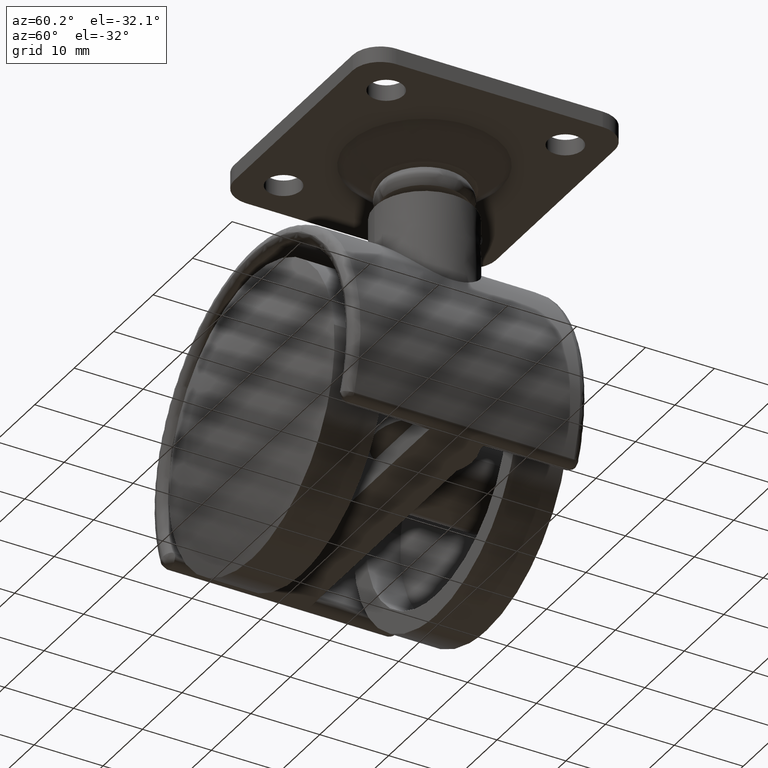
[diagram: clean part render]
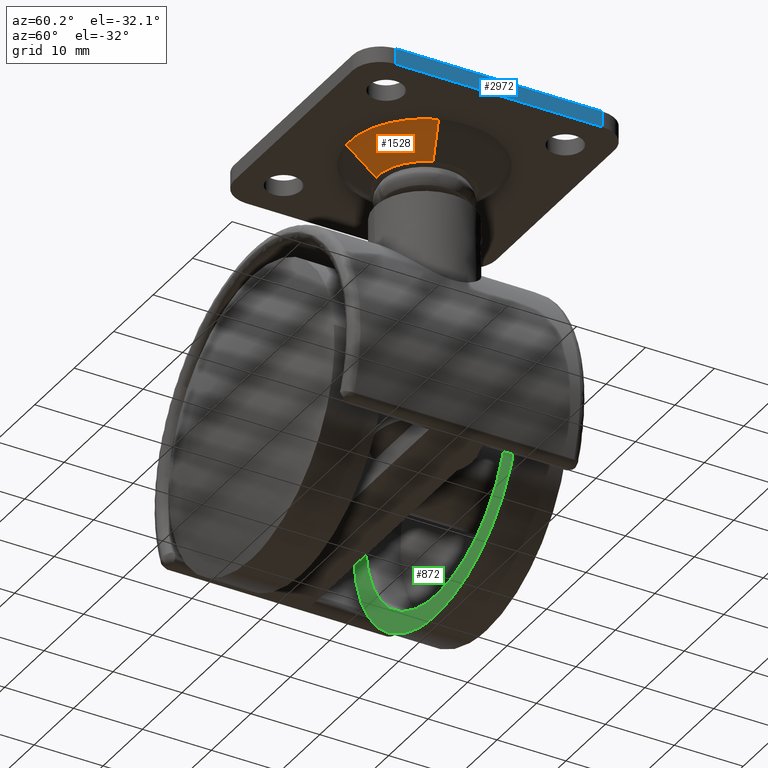
[diagram: same view with three faces highlighted in distinct colors, each labeled with its STEP entity id]
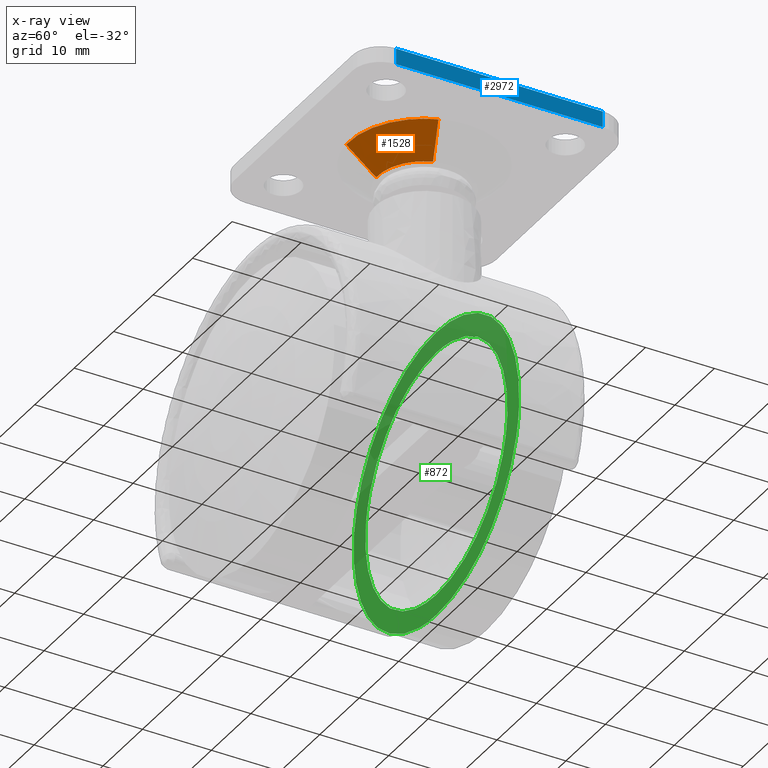
[diagram: x-ray of the same camera — body ghosted, the three highlighted faces saturated]
A machine part, auxiliary view with three faces highlighted in distinct colors.
The next image is the same camera in x-ray (body ghosted, the three faces saturated) — at least one of them is partly hidden behind the body in this view.
Their STEP definitions:

[orange] entity #1528 — the highlighted face is a freeform B-spline surface patch.
#1339=CARTESIAN_POINT('',(20.358819132950750,-2.388389833725817,31.498982323349232));
#1340=VERTEX_POINT('',#1339);
#1403=CARTESIAN_POINT('',(13.585321499116210,-6.779900854626694,31.498982323365318));
#1404=VERTEX_POINT('',#1403);
#1418=CARTESIAN_POINT('',(13.328464065108360,-10.979482782641190,35.200000000000983));
#1419=VERTEX_POINT('',#1418);
#1420=CARTESIAN_POINT('',(13.585321499116210,-6.779900854626694,31.498982323365318));
#1421=CARTESIAN_POINT('',(13.328464065108360,-10.979482782641190,35.200000000000983));
#1422=QUASI_UNIFORM_CURVE('',1,(#1420,#1421),.UNSPECIFIED.,.F.,.U.);
#1423=EDGE_CURVE('',#1404,#1419,#1422,.T.);
#1457=CARTESIAN_POINT('',(24.297577366536071,-3.867797718334381,35.200000000002362));
#1458=VERTEX_POINT('',#1457);
#1472=CARTESIAN_POINT('',(20.358819132950750,-2.388389833725817,31.498982323349232));
#1473=CARTESIAN_POINT('',(24.297577366536071,-3.867797718334381,35.200000000002362));
#1474=QUASI_UNIFORM_CURVE('',1,(#1472,#1473),.UNSPECIFIED.,.F.,.U.);
#1475=EDGE_CURVE('',#1340,#1458,#1474,.T.);
#1480=CARTESIAN_POINT('',(13.591742936263850,-6.674911289473668,31.406456866495390));
#1481=CARTESIAN_POINT('',(18.523141531887774,-6.976528548588443,31.406456866495390));
#1482=CARTESIAN_POINT('',(20.260350161275579,-2.351404630475757,31.406456866495379));
#1483=CARTESIAN_POINT('',(13.321882093338001,-11.087097069969809,35.294838578337632));
#1484=CARTESIAN_POINT('',(21.512986446532544,-11.588086474137222,35.294838578337632));
#1485=CARTESIAN_POINT('',(24.398508046675133,-3.905707545503113,35.294838578337625));
#1493=(BOUNDED_SURFACE()B_SPLINE_SURFACE(2,1,((#1480,#1483),(#1481,#1484),(#1482,#1485)),.UNSPECIFIED.,.F.,.F.,.U.)B_SPLINE_SURFACE_WITH_KNOTS((3,3),(2,2),(0.0,14.622869388429271),(0.0,5.887250680338510),.UNSPECIFIED.)GEOMETRIC_REPRESENTATION_ITEM()RATIONAL_B_SPLINE_SURFACE(((1.0,1.0),(0.765685424949238,0.765685424949238),(0.906274169979695,0.906274169979695)))REPRESENTATION_ITEM('')SURFACE());
#1494=CARTESIAN_POINT('',(13.585321499116212,-6.779900854626696,31.498982323365322));
#1495=CARTESIAN_POINT('',(13.792466205116348,-6.792570367576681,31.498982323334701));
#1496=CARTESIAN_POINT('',(13.999998000000099,-6.792570367576680,31.498982323334701));
#1497=CARTESIAN_POINT('',(18.704597415759594,-6.792570367576679,31.498982323334701));
#1498=CARTESIAN_POINT('',(20.358819132950753,-2.388389833725817,31.498982323349228));
#1506=(BOUNDED_CURVE()B_SPLINE_CURVE(2,(#1494,#1495,#1496,#1497,#1498),.UNSPECIFIED.,.F.,.U.)B_SPLINE_CURVE_WITH_KNOTS((3,2,3),(0.239332962229067,0.250000000000000,0.440284170890936),.UNSPECIFIED.)CURVE()GEOMETRIC_REPRESENTATION_ITEM()RATIONAL_B_SPLINE_CURVE((0.976072041645552,0.987502787888267,1.0,0.777068226794019,0.893499554626009))REPRESENTATION_ITEM(''));
#1507=EDGE_CURVE('',#1404,#1340,#1506,.T.);
#1508=ORIENTED_EDGE('',*,*,#1507,.T.);
#1509=ORIENTED_EDGE('',*,*,#1475,.T.);
#1510=CARTESIAN_POINT('',(13.328464065108356,-10.979482782641188,35.200000000000983));
#1511=CARTESIAN_POINT('',(13.663917603707356,-11.000000000000002,35.199999999999996));
#1512=CARTESIAN_POINT('',(13.999998000000099,-11.0,35.200000000000003));
#1513=CARTESIAN_POINT('',(21.618703552597434,-11.0,35.200000000000003));
#1514=CARTESIAN_POINT('',(24.297577366536064,-3.867797718334381,35.200000000002362));
#1522=(BOUNDED_CURVE()B_SPLINE_CURVE(2,(#1510,#1511,#1512,#1513,#1514),.UNSPECIFIED.,.F.,.U.)B_SPLINE_CURVE_WITH_KNOTS((3,2,3),(0.239332962241709,0.250000000000000,0.440284170898108),.UNSPECIFIED.)CURVE()GEOMETRIC_REPRESENTATION_ITEM()RATIONAL_B_SPLINE_CURVE((0.976072041672646,0.987502787903078,1.0,0.777068226785616,0.893499554634785))REPRESENTATION_ITEM(''));
#1523=EDGE_CURVE('',#1419,#1458,#1522,.T.);
#1524=ORIENTED_EDGE('',*,*,#1523,.F.);
#1525=ORIENTED_EDGE('',*,*,#1423,.F.);
#1526=EDGE_LOOP('',(#1508,#1509,#1524,#1525));
#1527=FACE_OUTER_BOUND('',#1526,.T.);
#1528=ADVANCED_FACE('',(#1527),#1493,.T.);

[blue] entity #2972 — the highlighted face is a freeform B-spline surface patch.
#2671=CARTESIAN_POINT('',(32.999998000000012,15.0,35.200000000000003));
#2672=VERTEX_POINT('',#2671);
#2686=CARTESIAN_POINT('',(32.999998000000012,-15.0,35.200000000000003));
#2687=VERTEX_POINT('',#2686);
#2688=CARTESIAN_POINT('',(32.999998000000012,15.0,35.200000000000003));
#2689=CARTESIAN_POINT('',(32.999998000000012,-15.0,35.200000000000003));
#2690=QUASI_UNIFORM_CURVE('',1,(#2688,#2689),.UNSPECIFIED.,.F.,.U.);
#2691=EDGE_CURVE('',#2672,#2687,#2690,.T.);
#2797=CARTESIAN_POINT('',(32.999998000000012,-15.0,37.500000000000000));
#2798=VERTEX_POINT('',#2797);
#2812=CARTESIAN_POINT('',(32.999998000000012,15.0,37.500000000000000));
#2813=VERTEX_POINT('',#2812);
#2814=CARTESIAN_POINT('',(32.999998000000012,15.0,37.500000000000000));
#2815=CARTESIAN_POINT('',(32.999998000000012,-15.0,37.500000000000000));
#2816=QUASI_UNIFORM_CURVE('',1,(#2814,#2815),.UNSPECIFIED.,.F.,.U.);
#2817=EDGE_CURVE('',#2813,#2798,#2816,.T.);
#2947=CARTESIAN_POINT('',(32.999998000000012,-15.0,37.500000000000000));
#2948=CARTESIAN_POINT('',(32.999998000000012,-15.0,35.200000000000003));
#2949=QUASI_UNIFORM_CURVE('',1,(#2947,#2948),.UNSPECIFIED.,.F.,.U.);
#2950=EDGE_CURVE('',#2798,#2687,#2949,.T.);
#2957=CARTESIAN_POINT('',(32.999998000000012,-16.498499941854181,37.614884954456080));
#2958=CARTESIAN_POINT('',(32.999998000000012,-16.498499941854181,35.085115806397219));
#2959=CARTESIAN_POINT('',(32.999998000000012,16.498500746516889,37.614884954456080));
#2960=CARTESIAN_POINT('',(32.999998000000012,16.498500746516889,35.085115806397219));
#2961=B_SPLINE_SURFACE_WITH_KNOTS('',1,1,((#2957,#2959),(#2958,#2960)),.UNSPECIFIED.,.F.,.F.,.U.,(2,2),(2,2),(0.0,2.529769148058861),(0.0,32.997000688371060),.UNSPECIFIED.);
#2962=ORIENTED_EDGE('',*,*,#2691,.F.);
#2963=CARTESIAN_POINT('',(32.999998000000012,15.0,37.500000000000000));
#2964=CARTESIAN_POINT('',(32.999998000000012,15.0,35.200000000000003));
#2965=QUASI_UNIFORM_CURVE('',1,(#2963,#2964),.UNSPECIFIED.,.F.,.U.);
#2966=EDGE_CURVE('',#2813,#2672,#2965,.T.);
#2967=ORIENTED_EDGE('',*,*,#2966,.F.);
#2968=ORIENTED_EDGE('',*,*,#2817,.T.);
#2969=ORIENTED_EDGE('',*,*,#2950,.T.);
#2970=EDGE_LOOP('',(#2962,#2967,#2968,#2969));
#2971=FACE_OUTER_BOUND('',#2970,.T.);
#2972=ADVANCED_FACE('',(#2971),#2961,.T.);

[green] entity #872 — the highlighted face is a freeform B-spline surface patch.
#457=CARTESIAN_POINT('',(17.874171845220008,-9.750000000000000,2.124613105375699));
#458=VERTEX_POINT('',#457);
#464=CARTESIAN_POINT('',(0.0,-9.750000000000000,-18.0));
#465=VERTEX_POINT('',#464);
#466=CARTESIAN_POINT('',(17.874171845220012,-9.749999999999998,2.124613105375699));
#467=CARTESIAN_POINT('',(18.000000000000004,-9.750000000000000,1.066032578027540));
#468=CARTESIAN_POINT('',(18.0,-9.750000000000000,0.0));
#469=CARTESIAN_POINT('',(18.000000000000007,-9.750000000000000,-18.000000000000007));
#470=CARTESIAN_POINT('',(0.0,-9.750000000000000,-18.0));
#478=(BOUNDED_CURVE()B_SPLINE_CURVE(2,(#466,#467,#468,#469,#470),.UNSPECIFIED.,.F.,.U.)B_SPLINE_CURVE_WITH_KNOTS((3,2,3),(0.229562503001067,0.250000000000000,0.500000000000000),.UNSPECIFIED.)CURVE()GEOMETRIC_REPRESENTATION_ITEM()RATIONAL_B_SPLINE_CURVE((0.956026811980530,0.976055982877969,1.0,0.707106781186547,1.0))REPRESENTATION_ITEM(''));
#479=EDGE_CURVE('',#458,#465,#478,.T.);
#481=CARTESIAN_POINT('',(-17.966427014271670,-9.750000000000000,-1.098863203833088));
#482=VERTEX_POINT('',#481);
#483=CARTESIAN_POINT('',(0.0,-9.750000000000000,-18.0));
#484=CARTESIAN_POINT('',(-16.932719126028278,-9.750000000000000,-18.000000000000007));
#485=CARTESIAN_POINT('',(-17.966427014271670,-9.750000000000000,-1.098863203833088));
#493=(BOUNDED_CURVE()B_SPLINE_CURVE(2,(#483,#484,#485),.UNSPECIFIED.,.F.,.U.)B_SPLINE_CURVE_WITH_KNOTS((3,3),(0.500000000000000,0.739333063157213),.UNSPECIFIED.)CURVE()GEOMETRIC_REPRESENTATION_ITEM()RATIONAL_B_SPLINE_CURVE((1.0,0.719603875053602,0.976072257953877))REPRESENTATION_ITEM(''));
#494=EDGE_CURVE('',#465,#482,#493,.T.);
#568=CARTESIAN_POINT('',(0.0,-9.750000000000000,18.0));
#569=VERTEX_POINT('',#568);
#570=CARTESIAN_POINT('',(-17.966427014271670,-9.750000000000000,-1.098863203833088));
#571=CARTESIAN_POINT('',(-18.0,-9.750000000000000,-0.549944470746249));
#572=CARTESIAN_POINT('',(-18.0,-9.750000000000000,0.0));
#573=CARTESIAN_POINT('',(-18.000000000000007,-9.750000000000000,18.000000000000007));
#574=CARTESIAN_POINT('',(0.0,-9.750000000000000,18.0));
#582=(BOUNDED_CURVE()B_SPLINE_CURVE(2,(#570,#571,#572,#573,#574),.UNSPECIFIED.,.F.,.U.)B_SPLINE_CURVE_WITH_KNOTS((3,2,3),(0.739333063157213,0.750000000000000,1.0),.UNSPECIFIED.)CURVE()GEOMETRIC_REPRESENTATION_ITEM()RATIONAL_B_SPLINE_CURVE((0.976072257953877,0.987502906132946,1.0,0.707106781186547,1.0))REPRESENTATION_ITEM(''));
#583=EDGE_CURVE('',#482,#569,#582,.T.);
#585=CARTESIAN_POINT('',(0.0,-9.750000000000000,18.0));
#586=CARTESIAN_POINT('',(15.987144275982264,-9.750000000000002,18.000000000000004));
#587=CARTESIAN_POINT('',(17.874171845220012,-9.749999999999998,2.124613105375699));
#595=(BOUNDED_CURVE()B_SPLINE_CURVE(2,(#585,#586,#587),.UNSPECIFIED.,.F.,.U.)B_SPLINE_CURVE_WITH_KNOTS((3,3),(0.0,0.229562503001067),.UNSPECIFIED.)CURVE()GEOMETRIC_REPRESENTATION_ITEM()RATIONAL_B_SPLINE_CURVE((1.0,0.731050798308578,0.956026811980530))REPRESENTATION_ITEM(''));
#596=EDGE_CURVE('',#569,#458,#595,.T.);
#624=CARTESIAN_POINT('',(20.853201967231360,-9.750000000000146,2.478702828818913));
#625=VERTEX_POINT('',#624);
#626=CARTESIAN_POINT('',(0.0,-9.750000000000000,-21.0));
#627=VERTEX_POINT('',#626);
#628=CARTESIAN_POINT('',(20.853201967231367,-9.750000000000146,2.478702828818913));
#629=CARTESIAN_POINT('',(20.999999999999996,-9.750000000000000,1.243698378106394));
#630=CARTESIAN_POINT('',(21.0,-9.750000000000000,0.0));
#631=CARTESIAN_POINT('',(21.000000000000007,-9.750000000000000,-21.000000000000007));
#632=CARTESIAN_POINT('',(0.0,-9.750000000000000,-21.0));
#640=(BOUNDED_CURVE()B_SPLINE_CURVE(2,(#628,#629,#630,#631,#632),.UNSPECIFIED.,.F.,.U.)B_SPLINE_CURVE_WITH_KNOTS((3,2,3),(0.229562603988611,0.250000000000000,0.500000000000000),.UNSPECIFIED.)CURVE()GEOMETRIC_REPRESENTATION_ITEM()RATIONAL_B_SPLINE_CURVE((0.956027009920400,0.976056101192236,1.0,0.707106781186547,1.0))REPRESENTATION_ITEM(''));
#641=EDGE_CURVE('',#625,#627,#640,.T.);
#682=CARTESIAN_POINT('',(-20.960832049034071,-9.749999999999961,-1.281998366514052));
#683=VERTEX_POINT('',#682);
#689=CARTESIAN_POINT('',(0.0,-9.750000000000000,-21.0));
#690=CARTESIAN_POINT('',(-19.754847199496840,-9.750000000000000,-20.999999999999996));
#691=CARTESIAN_POINT('',(-20.960832049034078,-9.749999999999961,-1.281998366514052));
#699=(BOUNDED_CURVE()B_SPLINE_CURVE(2,(#689,#690,#691),.UNSPECIFIED.,.F.,.U.)B_SPLINE_CURVE_WITH_KNOTS((3,3),(0.500000000000000,0.739333134812547),.UNSPECIFIED.)CURVE()GEOMETRIC_REPRESENTATION_ITEM()RATIONAL_B_SPLINE_CURVE((1.0,0.719603791104156,0.976072411525082))REPRESENTATION_ITEM(''));
#700=EDGE_CURVE('',#627,#683,#699,.T.);
#723=CARTESIAN_POINT('',(0.0,-9.750000000000000,21.0));
#724=VERTEX_POINT('',#723);
#725=CARTESIAN_POINT('',(0.0,-9.750000000000000,21.0));
#726=CARTESIAN_POINT('',(18.651679545705321,-9.750000000000002,21.000000000000007));
#727=CARTESIAN_POINT('',(20.853201967231367,-9.750000000000146,2.478702828818913));
#735=(BOUNDED_CURVE()B_SPLINE_CURVE(2,(#725,#726,#727),.UNSPECIFIED.,.F.,.U.)B_SPLINE_CURVE_WITH_KNOTS((3,3),(0.0,0.229562603988611),.UNSPECIFIED.)CURVE()GEOMETRIC_REPRESENTATION_ITEM()RATIONAL_B_SPLINE_CURVE((1.0,0.731050679994311,0.956027009920400))REPRESENTATION_ITEM(''));
#736=EDGE_CURVE('',#724,#625,#735,.T.);
#738=CARTESIAN_POINT('',(-20.960832049034078,-9.749999999999961,-1.281998366514052));
#739=CARTESIAN_POINT('',(-21.000000000000004,-9.750000000000000,-0.641597518022081));
#740=CARTESIAN_POINT('',(-21.0,-9.750000000000000,0.0));
#741=CARTESIAN_POINT('',(-21.000000000000007,-9.750000000000000,21.000000000000007));
#742=CARTESIAN_POINT('',(0.0,-9.750000000000000,21.0));
#750=(BOUNDED_CURVE()B_SPLINE_CURVE(2,(#738,#739,#740,#741,#742),.UNSPECIFIED.,.F.,.U.)B_SPLINE_CURVE_WITH_KNOTS((3,2,3),(0.739333134812547,0.750000000000000,1.0),.UNSPECIFIED.)CURVE()GEOMETRIC_REPRESENTATION_ITEM()RATIONAL_B_SPLINE_CURVE((0.976072411525082,0.987502990082391,1.0,0.707106781186547,1.0))REPRESENTATION_ITEM(''));
#751=EDGE_CURVE('',#683,#724,#750,.T.);
#855=CARTESIAN_POINT('',(-23.097390374325489,-9.750000000000000,23.097899918595850));
#856=CARTESIAN_POINT('',(-23.097390374325489,-9.750000000000000,-23.097901045123638));
#857=CARTESIAN_POINT('',(23.097518047474601,-9.750000000000000,23.097899918595850));
#858=CARTESIAN_POINT('',(23.097518047474590,-9.750000000000000,-23.097901045123638));
#859=B_SPLINE_SURFACE_WITH_KNOTS('',1,1,((#855,#857),(#856,#858)),.UNSPECIFIED.,.F.,.F.,.U.,(2,2),(2,2),(0.0,46.195800963719492),(0.0,46.194908421800093),.UNSPECIFIED.);
#860=ORIENTED_EDGE('',*,*,#736,.T.);
#861=ORIENTED_EDGE('',*,*,#641,.T.);
#862=ORIENTED_EDGE('',*,*,#700,.T.);
#863=ORIENTED_EDGE('',*,*,#751,.T.);
#864=EDGE_LOOP('',(#860,#861,#862,#863));
#865=FACE_OUTER_BOUND('',#864,.T.);
#866=ORIENTED_EDGE('',*,*,#494,.F.);
#867=ORIENTED_EDGE('',*,*,#479,.F.);
#868=ORIENTED_EDGE('',*,*,#596,.F.);
#869=ORIENTED_EDGE('',*,*,#583,.F.);
#870=EDGE_LOOP('',(#866,#867,#868,#869));
#871=FACE_BOUND('',#870,.T.);
#872=ADVANCED_FACE('',(#865,#871),#859,.F.);